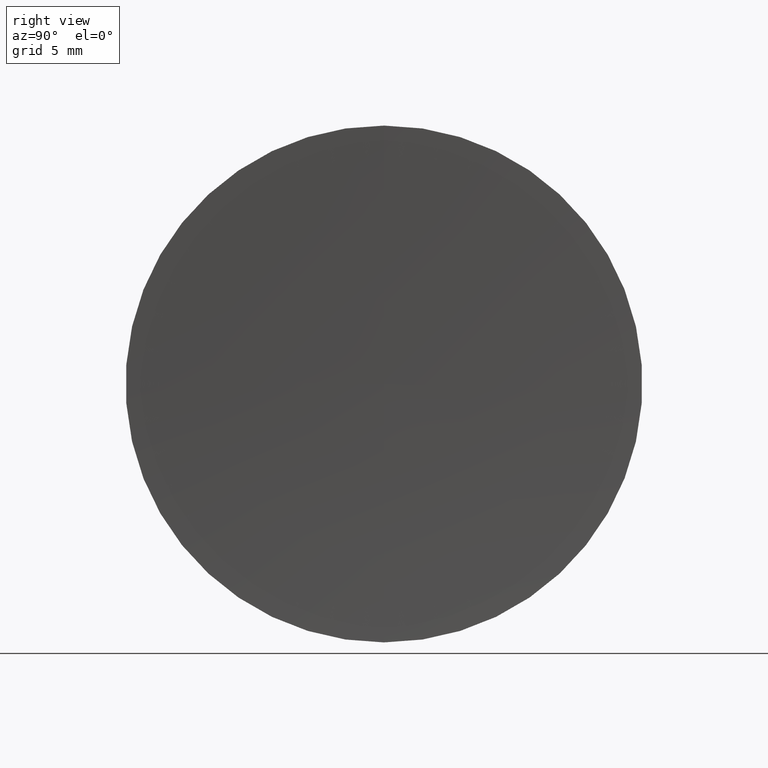
[diagram: clean part render]
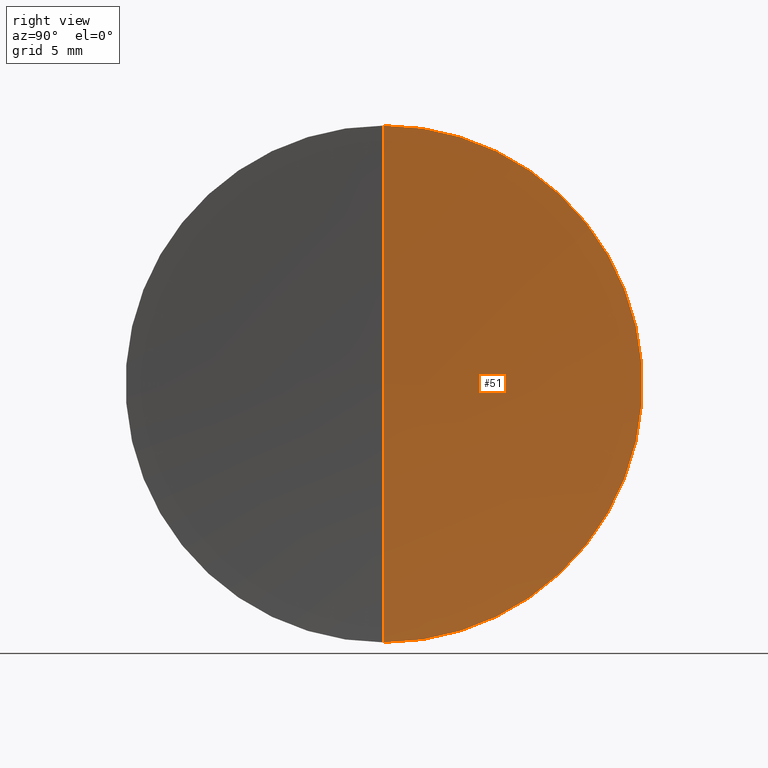
[diagram: same view with one face highlighted and labeled with its STEP entity id]
A machine part, right view. The second image highlights one B-rep face of the part: STEP entity #51.
In plain terms, the highlighted toroidal blend (fillet) surface has major radius 0.2936 mm and minor (blend) radius 258.18 mm.
Its self-contained STEP definition (entity closure, byte-faithful):
#4 = CIRCLE ( 'NONE', #25, 258.1799999999999500 ) ;
#9 = DIRECTION ( 'NONE',  ( 0.0000000000000000000, 0.0000000000000000000, 1.000000000000000000 ) ) ;
#13 = AXIS2_PLACEMENT_3D ( 'NONE', #118, #120, #131 ) ;
#14 = FACE_OUTER_BOUND ( 'NONE', #145, .T. ) ;
#20 = VERTEX_POINT ( 'NONE', #160 ) ;
#25 = AXIS2_PLACEMENT_3D ( 'NONE', #164, #105, #76 ) ;
#30 = CARTESIAN_POINT ( 'NONE',  ( 59.82088096594833400, 32.61076812922678400, 0.0000000000000000000 ) ) ;
#32 = VERTEX_POINT ( 'NONE', #46 ) ;
#33 = CARTESIAN_POINT ( 'NONE',  ( 59.82088096594834100, 32.61076812922678400, -12.49999999999963900 ) ) ;
#40 = CIRCLE ( 'NONE', #99, 12.49999999999999600 ) ;
#46 = CARTESIAN_POINT ( 'NONE',  ( 59.53233705252619500, 32.61076812922678400, 0.0000000000000000000 ) ) ;
#51 = ADVANCED_FACE ( 'NONE', ( #14 ), #56, .F. ) ;
#56 = TOROIDAL_SURFACE ( 'NONE', #77, 0.2936327526264770300, 258.1799999999998900 ) ;
#59 = DIRECTION ( 'NONE',  ( -1.000000000000000000, -0.0000000000000000000, -0.0000000000000000000 ) ) ;
#73 = DIRECTION ( 'NONE',  ( 0.0000000000000000000, 0.0000000000000000000, 1.000000000000000000 ) ) ;
#75 = CIRCLE ( 'NONE', #13, 258.1799999999999500 ) ;
#76 = DIRECTION ( 'NONE',  ( 0.0000000000000000000, 0.0000000000000000000, -1.000000000000000000 ) ) ;
#77 = AXIS2_PLACEMENT_3D ( 'NONE', #95, #59, #73 ) ;
#82 = ORIENTED_EDGE ( 'NONE', *, *, #148, .T. ) ;
#85 = VERTEX_POINT ( 'NONE', #33 ) ;
#95 = CARTESIAN_POINT ( 'NONE',  ( 317.7121700755695300, 32.61076812922678400, 0.0000000000000000000 ) ) ;
#99 = AXIS2_PLACEMENT_3D ( 'NONE', #30, #122, #9 ) ;
#105 = DIRECTION ( 'NONE',  ( 0.0000000000000000000, -1.000000000000000000, 0.0000000000000000000 ) ) ;
#118 = CARTESIAN_POINT ( 'NONE',  ( 317.7121700755695300, 32.61076812922678400, -0.2936327526264770300 ) ) ;
#120 = DIRECTION ( 'NONE',  ( -0.0000000000000000000, 1.000000000000000000, 1.224646799147353200E-016 ) ) ;
#121 = ORIENTED_EDGE ( 'NONE', *, *, #144, .F. ) ;
#122 = DIRECTION ( 'NONE',  ( -1.000000000000000000, -0.0000000000000000000, -0.0000000000000000000 ) ) ;
#131 = DIRECTION ( 'NONE',  ( 0.0000000000000000000, -1.343809339202732700E-016, 1.000000000000000000 ) ) ;
#144 = EDGE_CURVE ( 'NONE', #20, #85, #40, .T. ) ;
#145 = EDGE_LOOP ( 'NONE', ( #163, #121, #82 ) ) ;
#148 = EDGE_CURVE ( 'NONE', #20, #32, #4, .T. ) ;
#155 = EDGE_CURVE ( 'NONE', #85, #32, #75, .T. ) ;
#160 = CARTESIAN_POINT ( 'NONE',  ( 59.82088096594834100, 32.61076812922678400, 12.49999999999963900 ) ) ;
#163 = ORIENTED_EDGE ( 'NONE', *, *, #155, .F. ) ;
#164 = CARTESIAN_POINT ( 'NONE',  ( 317.7121700755695300, 32.61076812922678400, 0.2936327526264770300 ) ) ;